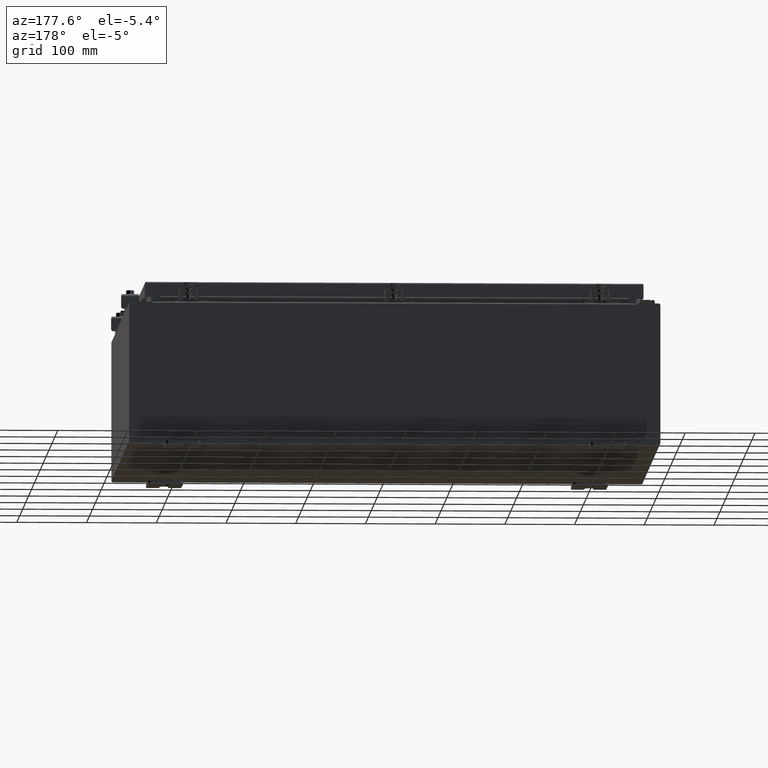
[diagram: clean part render]
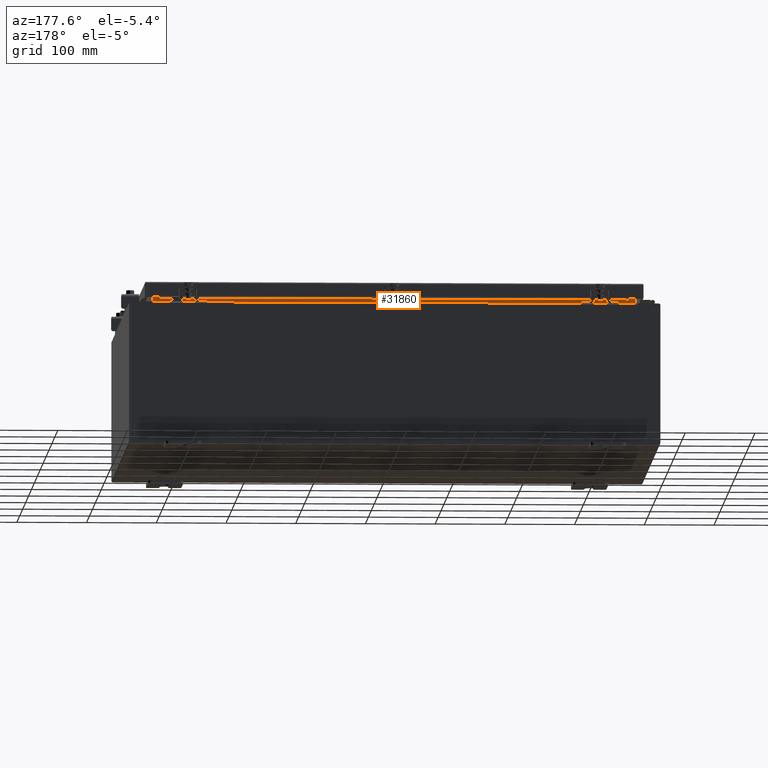
[diagram: same view with one face highlighted and labeled with its STEP entity id]
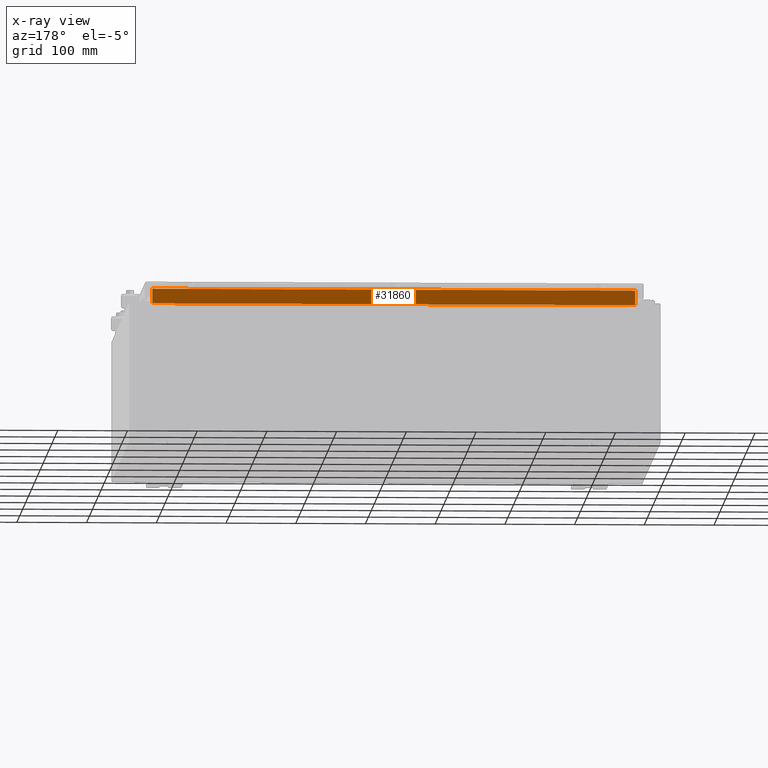
[diagram: x-ray of the same camera — body ghosted, the highlighted face saturated]
A machine part, auxiliary view. The second image highlights one B-rep face of the part: STEP entity #31860.
The next image is the same camera in x-ray: the body ghosted, the highlighted face saturated — about 0% of this face is hidden behind the body in this view.
In plain terms, the highlighted planar face has unit normal (0, 1, 0).
Its self-contained STEP definition (entity closure, byte-faithful):
#197 = EDGE_CURVE ( 'NONE', #26096, #4364, #27147, .T. ) ;
#682 = VECTOR ( 'NONE', #10063, 39.37007874015748100 ) ;
#1092 = FACE_OUTER_BOUND ( 'NONE', #29176, .T. ) ;
#3281 = DIRECTION ( 'NONE',  ( -0.0000000000000000000, -0.0000000000000000000, 1.000000000000000000 ) ) ;
#3630 = PLANE ( 'NONE',  #26420 ) ;
#3861 = EDGE_CURVE ( 'NONE', #4364, #11674, #8061, .T. ) ;
#4364 = VERTEX_POINT ( 'NONE', #23462 ) ;
#6201 = DIRECTION ( 'NONE',  ( 0.0000000000000000000, 1.000000000000000000, 0.0000000000000000000 ) ) ;
#7372 = DIRECTION ( 'NONE',  ( -0.0000000000000000000, -0.0000000000000000000, -1.000000000000000000 ) ) ;
#8061 = LINE ( 'NONE', #18601, #27638 ) ;
#8869 = CARTESIAN_POINT ( 'NONE',  ( 13.63720000000000400, -1.300299999999999300, 4.837600000000002800 ) ) ;
#9914 = LINE ( 'NONE', #12646, #682 ) ;
#10063 = DIRECTION ( 'NONE',  ( -1.000000000000000000, -0.0000000000000000000, -0.0000000000000000000 ) ) ;
#10687 = EDGE_CURVE ( 'NONE', #30556, #26096, #23281, .T. ) ;
#11263 = CARTESIAN_POINT ( 'NONE',  ( -13.63719999999999800, -1.300299999999999300, 4.013000000000003500 ) ) ;
#11674 = VERTEX_POINT ( 'NONE', #8869 ) ;
#12646 = CARTESIAN_POINT ( 'NONE',  ( 13.63720000000000400, -1.300299999999999300, 4.837600000000002800 ) ) ;
#14204 = ORIENTED_EDGE ( 'NONE', *, *, #3861, .F. ) ;
#16457 = CARTESIAN_POINT ( 'NONE',  ( -13.63719999999999800, -1.300299999999999300, 4.837600000000002800 ) ) ;
#16639 = ORIENTED_EDGE ( 'NONE', *, *, #10687, .F. ) ;
#17427 = ORIENTED_EDGE ( 'NONE', *, *, #26842, .F. ) ;
#18601 = CARTESIAN_POINT ( 'NONE',  ( 13.63720000000000400, -1.300299999999999300, 4.925300000000004500 ) ) ;
#20149 = DIRECTION ( 'NONE',  ( 1.000000000000000000, 0.0000000000000000000, -2.003232330437526000E-017 ) ) ;
#20400 = VECTOR ( 'NONE', #20149, 39.37007874015748100 ) ;
#21526 = CARTESIAN_POINT ( 'NONE',  ( 0.0000000000000000000, -1.300299999999999300, 0.0000000000000000000 ) ) ;
#23281 = LINE ( 'NONE', #25236, #29222 ) ;
#23462 = CARTESIAN_POINT ( 'NONE',  ( 13.63720000000000000, -1.300299999999999300, 4.013000000000003500 ) ) ;
#24055 = DIRECTION ( 'NONE',  ( 0.0000000000000000000, -0.0000000000000000000, 1.000000000000000000 ) ) ;
#24264 = CARTESIAN_POINT ( 'NONE',  ( -13.63719999999999800, -1.300299999999999300, 4.013000000000004300 ) ) ;
#25236 = CARTESIAN_POINT ( 'NONE',  ( -13.63719999999999800, -1.300299999999999300, 4.000000000000004400 ) ) ;
#26096 = VERTEX_POINT ( 'NONE', #11263 ) ;
#26420 = AXIS2_PLACEMENT_3D ( 'NONE', #21526, #6201, #24055 ) ;
#26842 = EDGE_CURVE ( 'NONE', #11674, #30556, #9914, .T. ) ;
#27147 = LINE ( 'NONE', #24264, #20400 ) ;
#27638 = VECTOR ( 'NONE', #3281, 39.37007874015748100 ) ;
#29176 = EDGE_LOOP ( 'NONE', ( #16639, #17427, #14204, #31289 ) ) ;
#29222 = VECTOR ( 'NONE', #7372, 39.37007874015748100 ) ;
#30556 = VERTEX_POINT ( 'NONE', #16457 ) ;
#31289 = ORIENTED_EDGE ( 'NONE', *, *, #197, .F. ) ;
#31860 = ADVANCED_FACE ( 'NONE', ( #1092 ), #3630, .T. ) ;